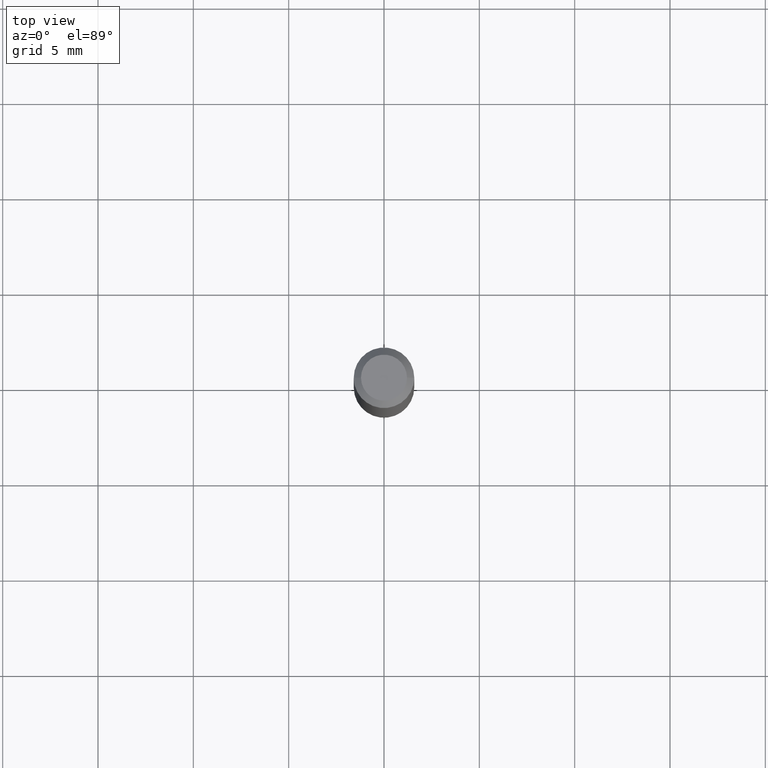
[diagram: clean part render]
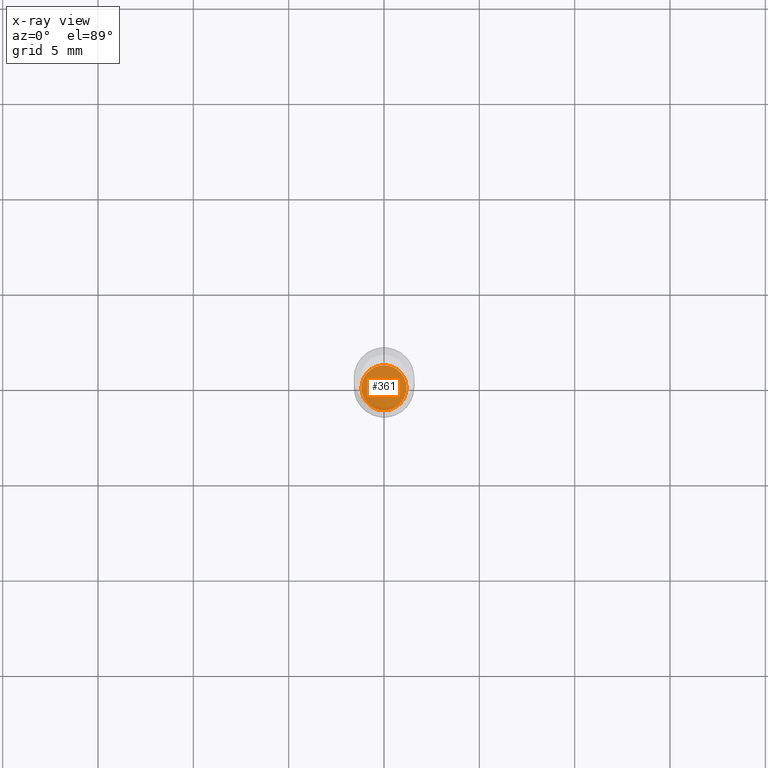
[diagram: x-ray — body ghosted, one internal face saturated and labeled with its STEP entity id]
A machine part, top view, then the same camera in x-ray: the body is ghosted and one INTERNAL B-rep face — a face not visible from any outside direction — is saturated and labeled: STEP entity #361.
In plain terms, the highlighted planar face has unit normal (0, -0, -1).
Its self-contained STEP definition (entity closure, byte-faithful):
#1 = CARTESIAN_POINT ( 'NONE',  ( -0.04649999999999999967, -4.419757989367653263E-15, -1.221000000000000085 ) ) ;
#3 = DIRECTION ( 'NONE',  ( 2.438088387897960049E-29, -3.491481338843145188E-15, -1.000000000000000000 ) ) ;
#36 = PLANE ( 'NONE',  #37 ) ;
#37 = AXIS2_PLACEMENT_3D ( 'NONE', #295, #3, #187 ) ;
#48 = EDGE_CURVE ( 'NONE', #275, #341, #350, .T. ) ;
#64 = CIRCLE ( 'NONE', #330, 0.04649999999999999967 ) ;
#81 = CARTESIAN_POINT ( 'NONE',  ( 0.04649999999999999967, -4.587806479239892817E-15, -1.221000000000000085 ) ) ;
#100 = EDGE_LOOP ( 'NONE', ( #207, #225 ) ) ;
#164 = DIRECTION ( 'NONE',  ( -2.445468806185136597E-29, 3.491481338843145583E-15, 1.000000000000000000 ) ) ;
#187 = DIRECTION ( 'NONE',  ( -1.000000000000000000, 6.982962677686265922E-15, -4.876176775795935793E-29 ) ) ;
#207 = ORIENTED_EDGE ( 'NONE', *, *, #337, .T. ) ;
#225 = ORIENTED_EDGE ( 'NONE', *, *, #48, .T. ) ;
#228 = FACE_OUTER_BOUND ( 'NONE', #100, .T. ) ;
#275 = VERTEX_POINT ( 'NONE', #1 ) ;
#295 = CARTESIAN_POINT ( 'NONE',  ( 3.247077645124412269E-16, 0.04649999999999573919, -1.221000000000000307 ) ) ;
#308 = DIRECTION ( 'NONE',  ( 1.000000000000000000, -6.982962677686260400E-15, 0.000000000000000000 ) ) ;
#330 = AXIS2_PLACEMENT_3D ( 'NONE', #365, #402, #340 ) ;
#337 = EDGE_CURVE ( 'NONE', #341, #275, #64, .T. ) ;
#340 = DIRECTION ( 'NONE',  ( 1.000000000000000000, -6.982962677686260400E-15, 0.000000000000000000 ) ) ;
#341 = VERTEX_POINT ( 'NONE', #81 ) ;
#342 = CARTESIAN_POINT ( 'NONE',  ( 2.985917412352052273E-29, -4.263098714727481320E-15, -1.221000000000000085 ) ) ;
#350 = CIRCLE ( 'NONE', #388, 0.04649999999999999967 ) ;
#361 = ADVANCED_FACE ( 'NONE', ( #228 ), #36, .F. ) ;
#365 = CARTESIAN_POINT ( 'NONE',  ( 2.985917412352052273E-29, -4.263098714727481320E-15, -1.221000000000000085 ) ) ;
#388 = AXIS2_PLACEMENT_3D ( 'NONE', #342, #164, #308 ) ;
#402 = DIRECTION ( 'NONE',  ( -2.445468806185136597E-29, 3.491481338843145583E-15, 1.000000000000000000 ) ) ;